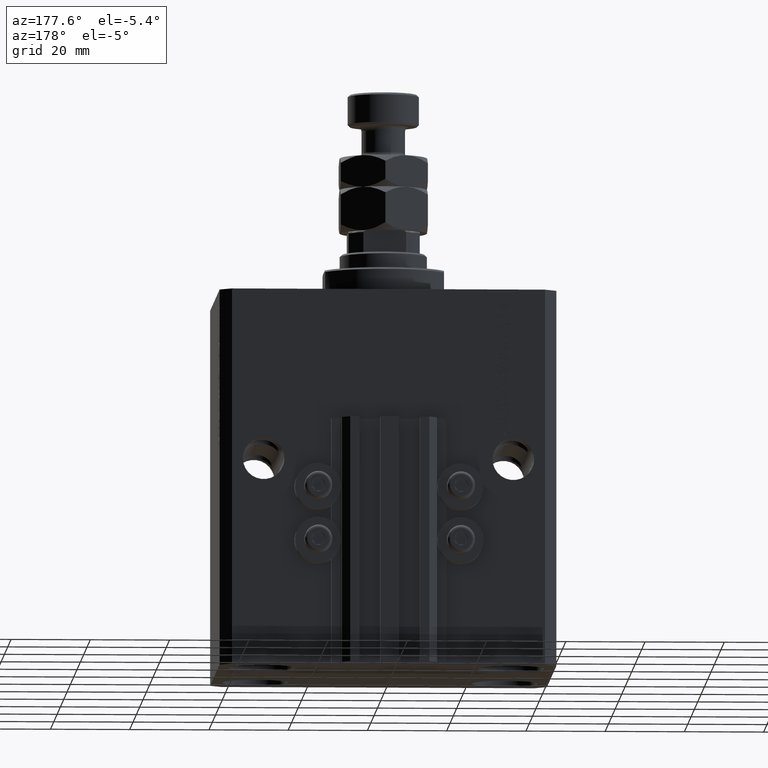
[diagram: clean part render]
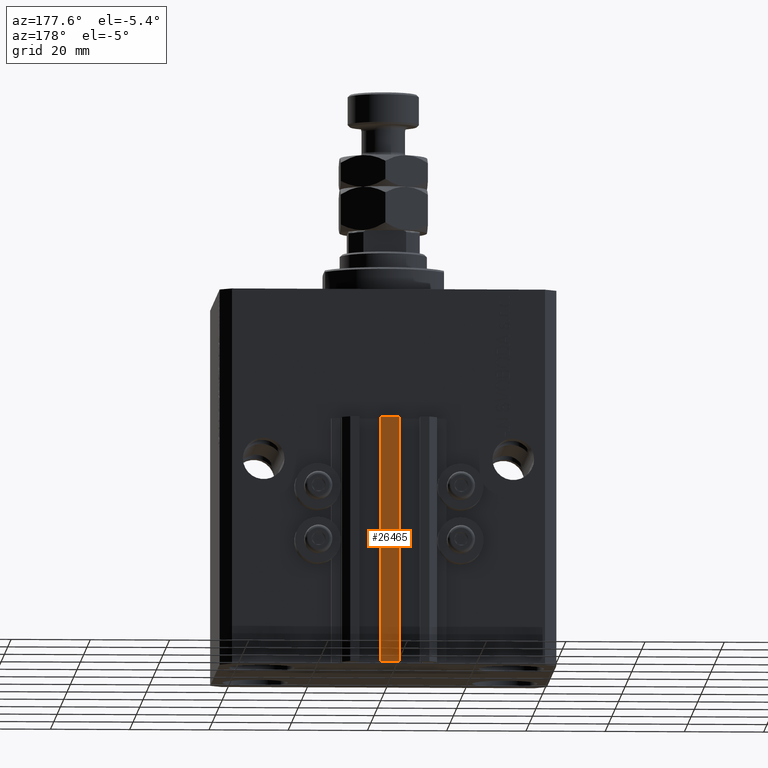
[diagram: same view with one face highlighted and labeled with its STEP entity id]
A machine part, auxiliary view. The second image highlights one B-rep face of the part: STEP entity #26465.
In plain terms, the highlighted planar face has unit normal (0, -1, 0).
Its self-contained STEP definition (entity closure, byte-faithful):
#432 = CARTESIAN_POINT ( 'NONE',  ( 2.349999999999999645, 39.50000000000000711, -95.00000000000000000 ) ) ;
#3761 = VECTOR ( 'NONE', #11293, 1000.000000000000000 ) ;
#3981 = VECTOR ( 'NONE', #42350, 1000.000000000000000 ) ;
#4060 = LINE ( 'NONE', #22503, #3761 ) ;
#4091 = ORIENTED_EDGE ( 'NONE', *, *, #19795, .T. ) ;
#4187 = CARTESIAN_POINT ( 'NONE',  ( -2.350000000000003642, 39.50000000000000711, -33.00000000000000000 ) ) ;
#4476 = CARTESIAN_POINT ( 'NONE',  ( 2.349999999999999645, 39.50000000000000711, -33.00000000000000000 ) ) ;
#5327 = EDGE_LOOP ( 'NONE', ( #4091, #31728, #7039, #19542 ) ) ;
#5472 = VERTEX_POINT ( 'NONE', #38213 ) ;
#7039 = ORIENTED_EDGE ( 'NONE', *, *, #35551, .F. ) ;
#7486 = FACE_OUTER_BOUND ( 'NONE', #5327, .T. ) ;
#7722 = EDGE_CURVE ( 'NONE', #43118, #40206, #32303, .T. ) ;
#8318 = AXIS2_PLACEMENT_3D ( 'NONE', #26398, #34113, #49282 ) ;
#11170 = DIRECTION ( 'NONE',  ( 1.000000000000000000, 0.000000000000000000, 0.000000000000000000 ) ) ;
#11293 = DIRECTION ( 'NONE',  ( 0.000000000000000000, 0.000000000000000000, 1.000000000000000000 ) ) ;
#16886 = CARTESIAN_POINT ( 'NONE',  ( 2.349999999999999645, 39.50000000000000711, -95.00000000000000000 ) ) ;
#17230 = CARTESIAN_POINT ( 'NONE',  ( -2.350000000000003642, 39.50000000000000711, -95.00000000000000000 ) ) ;
#17477 = LINE ( 'NONE', #17230, #26791 ) ;
#19542 = ORIENTED_EDGE ( 'NONE', *, *, #36653, .T. ) ;
#19795 = EDGE_CURVE ( 'NONE', #5472, #40206, #45538, .T. ) ;
#22503 = CARTESIAN_POINT ( 'NONE',  ( -2.350000000000003642, 39.50000000000000711, -95.00000000000000000 ) ) ;
#23404 = VECTOR ( 'NONE', #11170, 1000.000000000000000 ) ;
#26398 = CARTESIAN_POINT ( 'NONE',  ( -2.350000000000003642, 39.50000000000000711, -95.00000000000000000 ) ) ;
#26465 = ADVANCED_FACE ( 'NONE', ( #7486 ), #30129, .F. ) ;
#26791 = VECTOR ( 'NONE', #32404, 1000.000000000000000 ) ;
#30129 = PLANE ( 'NONE',  #8318 ) ;
#31728 = ORIENTED_EDGE ( 'NONE', *, *, #7722, .F. ) ;
#32303 = LINE ( 'NONE', #16886, #3981 ) ;
#32404 = DIRECTION ( 'NONE',  ( 1.000000000000000000, 0.000000000000000000, 0.000000000000000000 ) ) ;
#33358 = CARTESIAN_POINT ( 'NONE',  ( -2.350000000000003642, 39.50000000000000711, -95.00000000000000000 ) ) ;
#34113 = DIRECTION ( 'NONE',  ( 0.000000000000000000, -1.000000000000000000, 0.000000000000000000 ) ) ;
#35551 = EDGE_CURVE ( 'NONE', #48934, #43118, #17477, .T. ) ;
#36653 = EDGE_CURVE ( 'NONE', #48934, #5472, #4060, .T. ) ;
#38213 = CARTESIAN_POINT ( 'NONE',  ( -2.350000000000003642, 39.50000000000000711, -33.00000000000000000 ) ) ;
#40206 = VERTEX_POINT ( 'NONE', #4476 ) ;
#42350 = DIRECTION ( 'NONE',  ( 0.000000000000000000, 0.000000000000000000, 1.000000000000000000 ) ) ;
#43118 = VERTEX_POINT ( 'NONE', #432 ) ;
#45538 = LINE ( 'NONE', #4187, #23404 ) ;
#48934 = VERTEX_POINT ( 'NONE', #33358 ) ;
#49282 = DIRECTION ( 'NONE',  ( 0.000000000000000000, -0.000000000000000000, -1.000000000000000000 ) ) ;